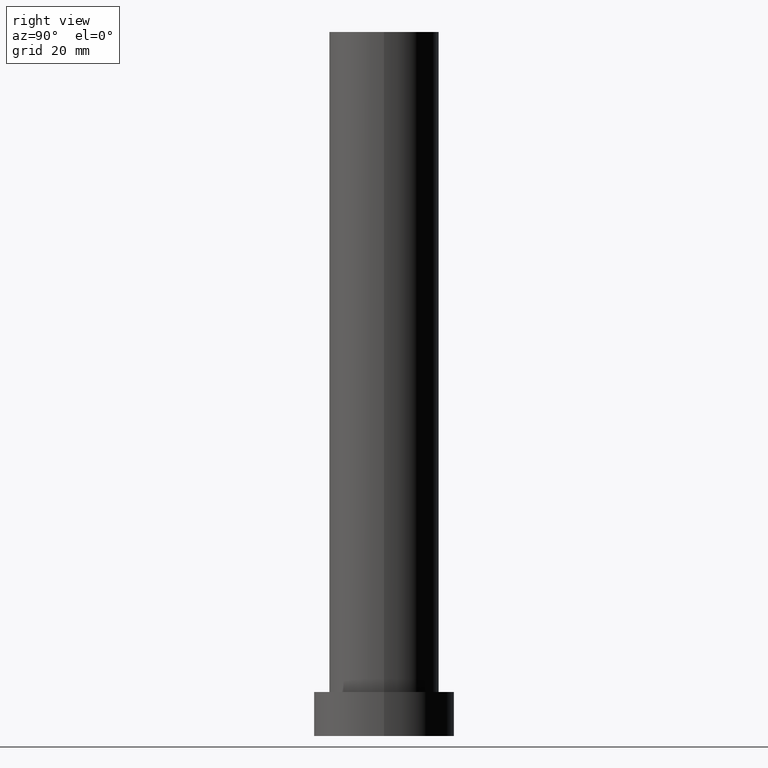
[diagram: clean part render]
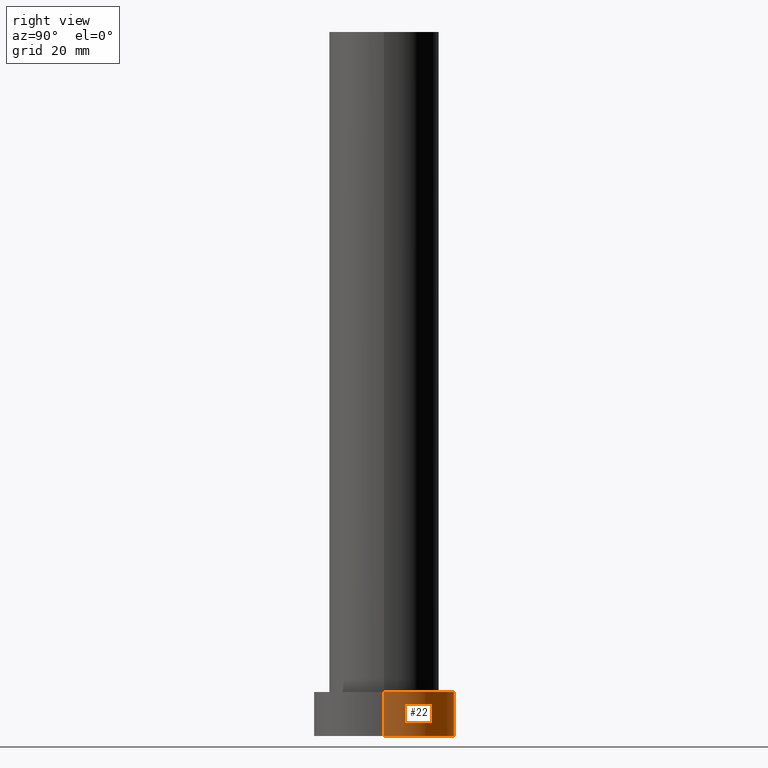
[diagram: same view with one face highlighted and labeled with its STEP entity id]
A machine part, right view. The second image highlights one B-rep face of the part: STEP entity #22.
In plain terms, the highlighted cylindrical surface (partial cylindrical patch) has radius 16 mm, axis along (-0, -0, -1).
Its self-contained STEP definition (entity closure, byte-faithful):
#3 = LINE ( 'NONE', #46, #191 ) ;
#7 = AXIS2_PLACEMENT_3D ( 'NONE', #66, #45, #203 ) ;
#8 = DIRECTION ( 'NONE',  ( 0.000000000000000000, 0.000000000000000000, 1.000000000000000000 ) ) ;
#20 = CIRCLE ( 'NONE', #250, 16.00000000000000000 ) ;
#22 = ADVANCED_FACE ( 'NONE', ( #164 ), #80, .T. ) ;
#26 = CARTESIAN_POINT ( 'NONE',  ( 16.00000000000000000, 1.959434878635765131E-15, 0.000000000000000000 ) ) ;
#30 = VERTEX_POINT ( 'NONE', #36 ) ;
#36 = CARTESIAN_POINT ( 'NONE',  ( -16.00000000000000000, 0.000000000000000000, 10.00000000000000000 ) ) ;
#45 = DIRECTION ( 'NONE',  ( 0.000000000000000000, 0.000000000000000000, 1.000000000000000000 ) ) ;
#46 = CARTESIAN_POINT ( 'NONE',  ( 16.00000000000000000, 1.959434878635765131E-15, 10.00000000000000000 ) ) ;
#48 = DIRECTION ( 'NONE',  ( -0.000000000000000000, -0.000000000000000000, -1.000000000000000000 ) ) ;
#54 = AXIS2_PLACEMENT_3D ( 'NONE', #237, #174, #59 ) ;
#59 = DIRECTION ( 'NONE',  ( -1.000000000000000000, 0.000000000000000000, 0.000000000000000000 ) ) ;
#66 = CARTESIAN_POINT ( 'NONE',  ( 0.000000000000000000, 0.000000000000000000, 10.00000000000000000 ) ) ;
#68 = CARTESIAN_POINT ( 'NONE',  ( -16.00000000000000000, 0.000000000000000000, 0.000000000000000000 ) ) ;
#80 = CYLINDRICAL_SURFACE ( 'NONE', #54, 16.00000000000000000 ) ;
#83 = CARTESIAN_POINT ( 'NONE',  ( 16.00000000000000000, 1.959434878635765131E-15, 10.00000000000000000 ) ) ;
#92 = DIRECTION ( 'NONE',  ( 1.000000000000000000, 0.000000000000000000, 0.000000000000000000 ) ) ;
#93 = VERTEX_POINT ( 'NONE', #26 ) ;
#94 = EDGE_LOOP ( 'NONE', ( #247, #146, #193, #109 ) ) ;
#109 = ORIENTED_EDGE ( 'NONE', *, *, #172, .F. ) ;
#116 = CIRCLE ( 'NONE', #7, 16.00000000000000000 ) ;
#143 = LINE ( 'NONE', #224, #152 ) ;
#146 = ORIENTED_EDGE ( 'NONE', *, *, #205, .T. ) ;
#148 = VERTEX_POINT ( 'NONE', #83 ) ;
#152 = VECTOR ( 'NONE', #48, 1000.000000000000000 ) ;
#156 = EDGE_CURVE ( 'NONE', #148, #30, #116, .T. ) ;
#164 = FACE_OUTER_BOUND ( 'NONE', #94, .T. ) ;
#169 = VERTEX_POINT ( 'NONE', #68 ) ;
#172 = EDGE_CURVE ( 'NONE', #30, #169, #143, .T. ) ;
#174 = DIRECTION ( 'NONE',  ( -0.000000000000000000, -0.000000000000000000, -1.000000000000000000 ) ) ;
#183 = DIRECTION ( 'NONE',  ( -0.000000000000000000, -0.000000000000000000, -1.000000000000000000 ) ) ;
#191 = VECTOR ( 'NONE', #183, 1000.000000000000000 ) ;
#193 = ORIENTED_EDGE ( 'NONE', *, *, #194, .T. ) ;
#194 = EDGE_CURVE ( 'NONE', #93, #169, #20, .T. ) ;
#203 = DIRECTION ( 'NONE',  ( 1.000000000000000000, 0.000000000000000000, 0.000000000000000000 ) ) ;
#205 = EDGE_CURVE ( 'NONE', #148, #93, #3, .T. ) ;
#224 = CARTESIAN_POINT ( 'NONE',  ( -16.00000000000000000, 0.000000000000000000, 10.00000000000000000 ) ) ;
#237 = CARTESIAN_POINT ( 'NONE',  ( 0.000000000000000000, 0.000000000000000000, 10.00000000000000000 ) ) ;
#247 = ORIENTED_EDGE ( 'NONE', *, *, #156, .F. ) ;
#248 = CARTESIAN_POINT ( 'NONE',  ( 0.000000000000000000, 0.000000000000000000, 0.000000000000000000 ) ) ;
#250 = AXIS2_PLACEMENT_3D ( 'NONE', #248, #8, #92 ) ;